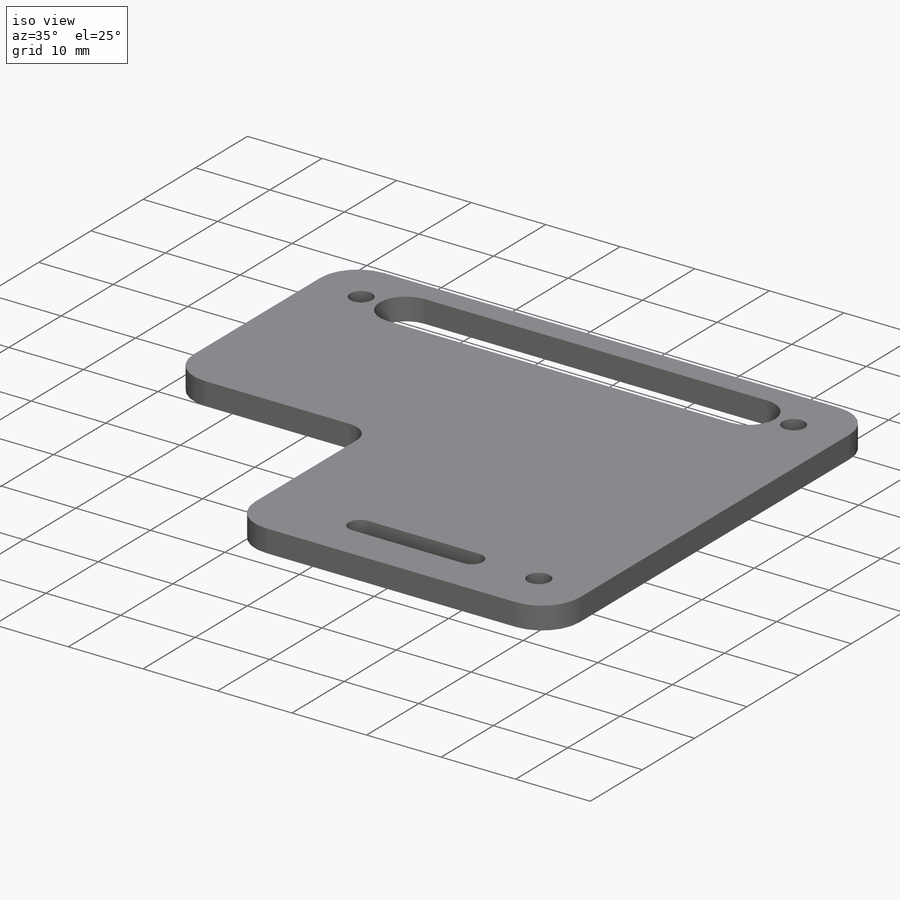
[diagram: iso view]
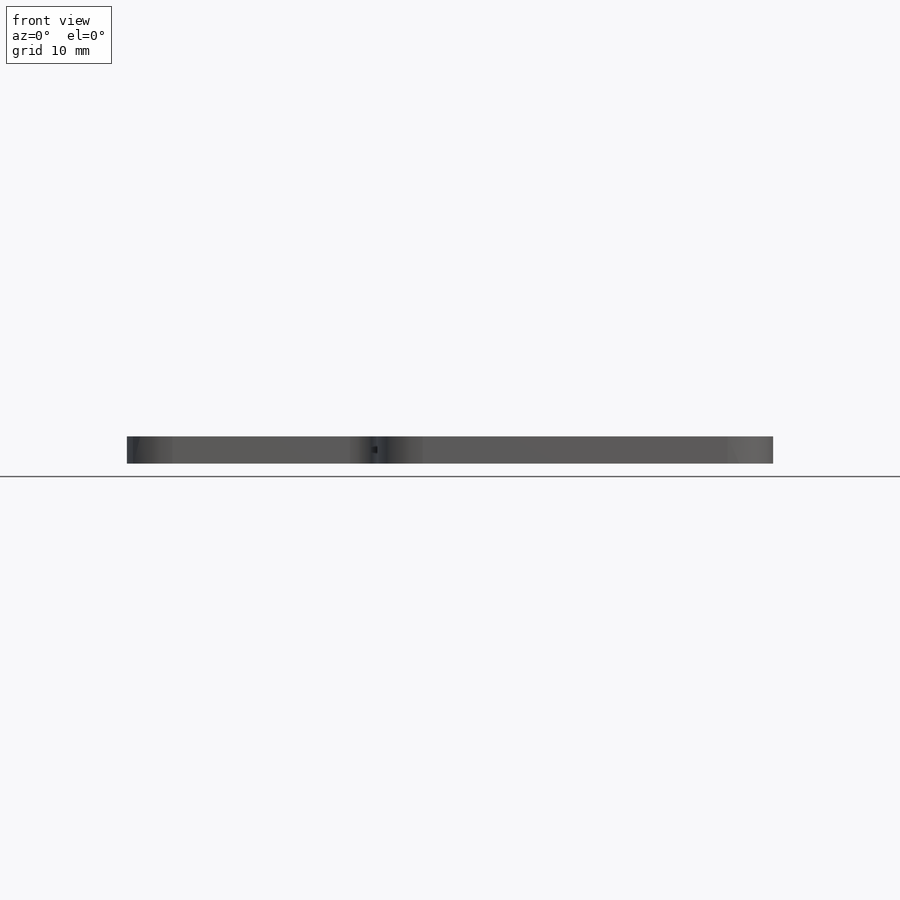
[diagram: front view]
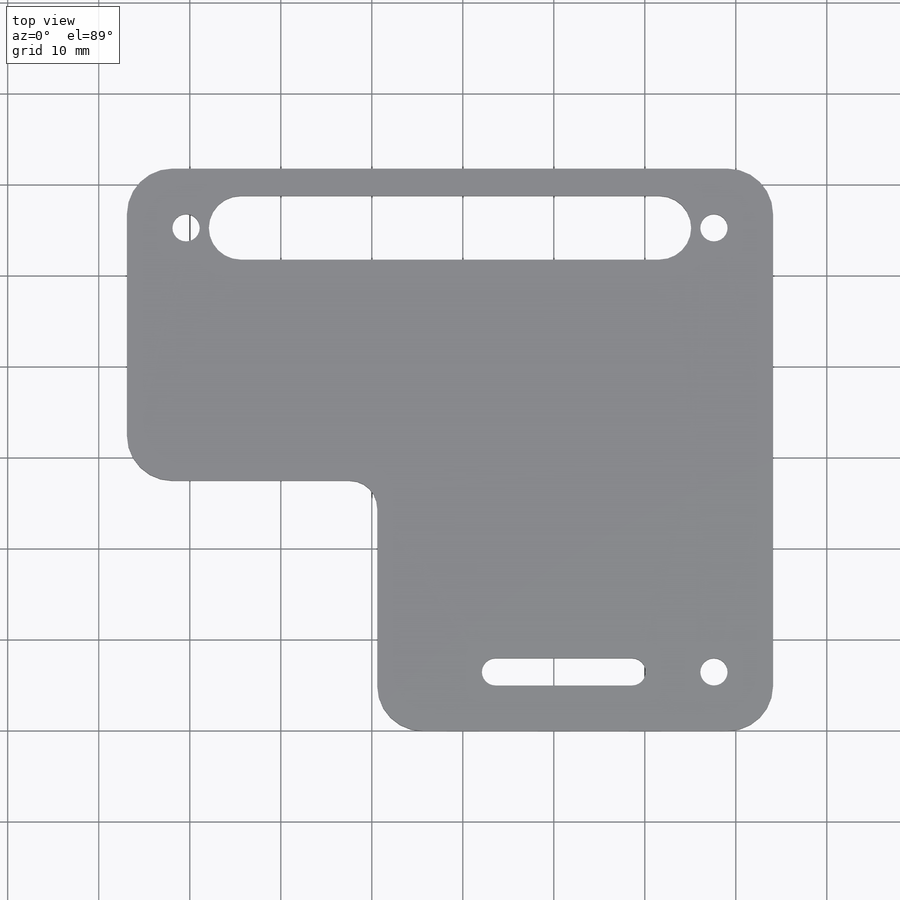
[diagram: top view]
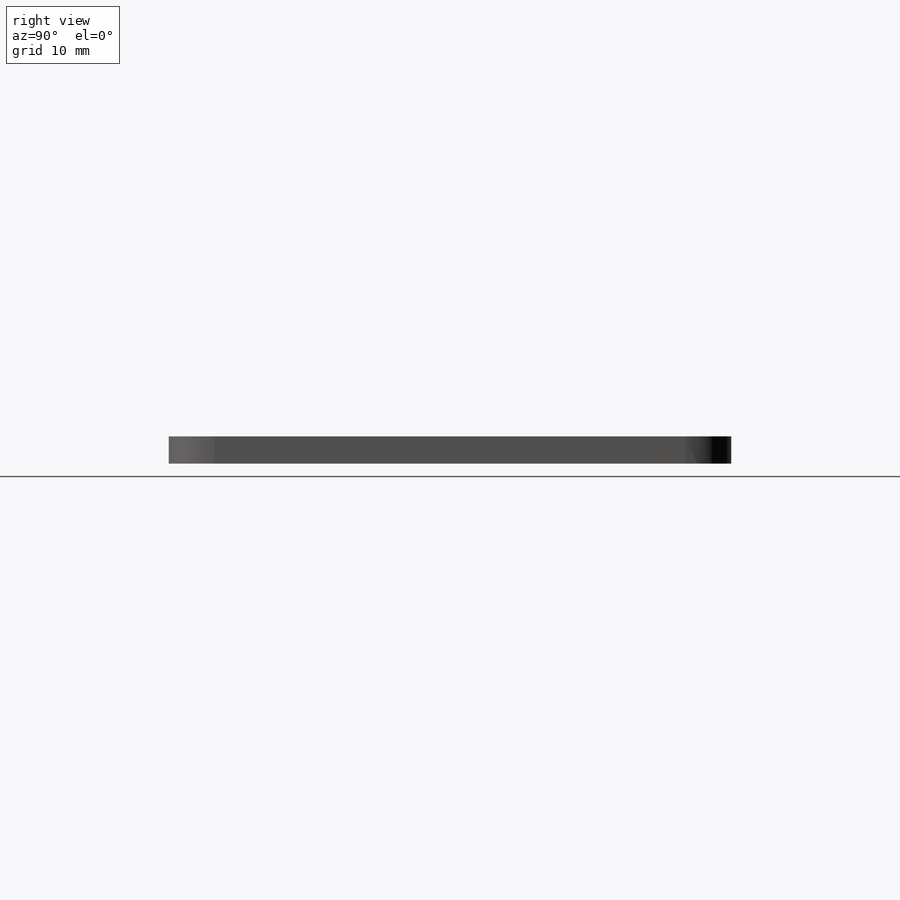
[diagram: right view]
SOLIDWORKS PART (.sldprt)
format: sldprt  version: not decoded by parser v0  size: 279,040 bytes
history: native  units: mm
features: sketch x5, fillet x5, cut_extrude x4, plane x3, material x1, extrude x1 (+10 scaffold rows collapsed)
feature tree (29):
  scaffold x10  (default folders/planes/origin — collapsed)
  material  "材质 <未指定>"
  plane  "前视"
  plane  "上视"
  plane  "右视"
  sketch  "草图1"  dims[D1=71.0mm D2=61.8mm]
  extrude  "凸台-拉伸1"  Depth=3mm
  fillet  "圆角1"  Radius=5mm
  fillet  "圆角3"  Radius=5mm
  fillet  "圆角4"  Radius=5mm
  sketch  "草图2"  dims[c1.D1=~2.44327mm c1.D3=~1.802703mm c2.D1=6.5mm c2.D2=6.5mm c2.D3=6.5mm c2.D4=6.5mm c2.D5=6.5mm c2.D6=~6.531338mm c3.D6=90.0deg c4.D6=6.5mm c4.D7=6.5mm c4.D8=6.5mm]
  cut_extrude  "切除-拉伸1"  [1 undecoded]
  sketch  "草图5"  dims[c1.D2=3.25mm c1.D1=35.5mm c2.D2=46.0mm]
  cut_extrude  "切除-拉伸2"  [1 undecoded]
  sketch  "草图6"  dims[D1=27.5mm D2=27.5mm]
  cut_extrude  "切除-拉伸3"  [1 undecoded]
  fillet  "圆角5"  Radius=5mm
  fillet  "圆角6"  Radius=3mm
  sketch  "草图7"  dims[D1=23.0mm D2=15.0mm]
  cut_extrude  "切除-拉伸4"  [1 undecoded]
decode coverage: 11 of 15 modeling features carry decoded parameters
note: ~ marks probable driven/reference dimensions
note: 4 parameter values undecoded
summary: no parameter record found for 4 features
note: suppression state not decoded; provenance and decode notes live in map.json
